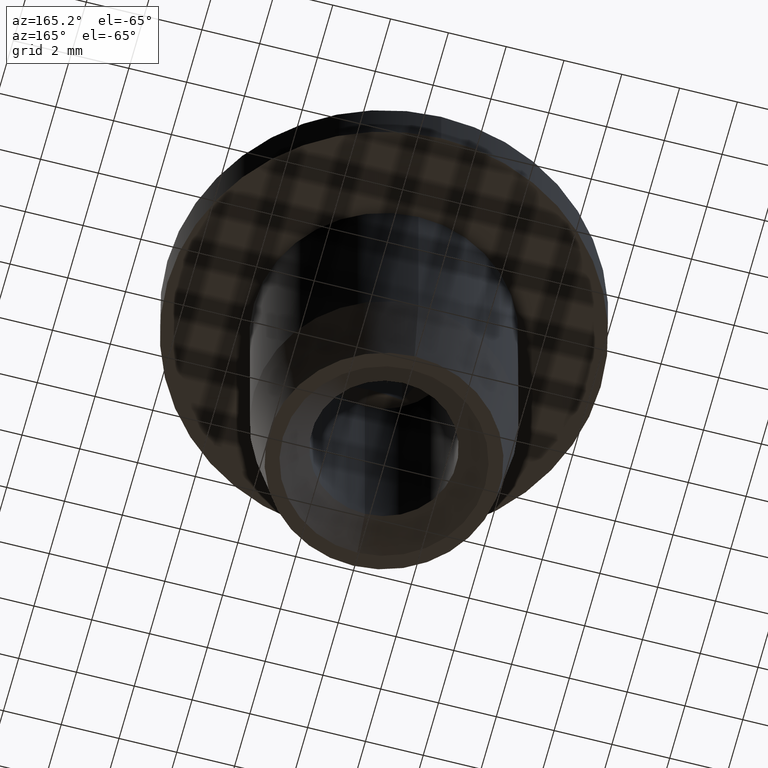
[diagram: clean part render]
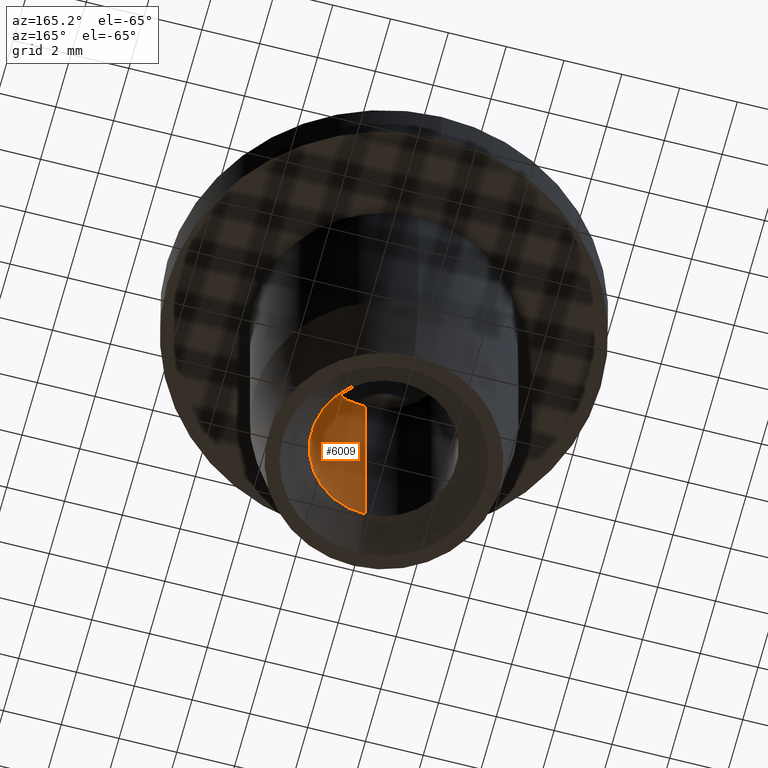
[diagram: same view with one face highlighted and labeled with its STEP entity id]
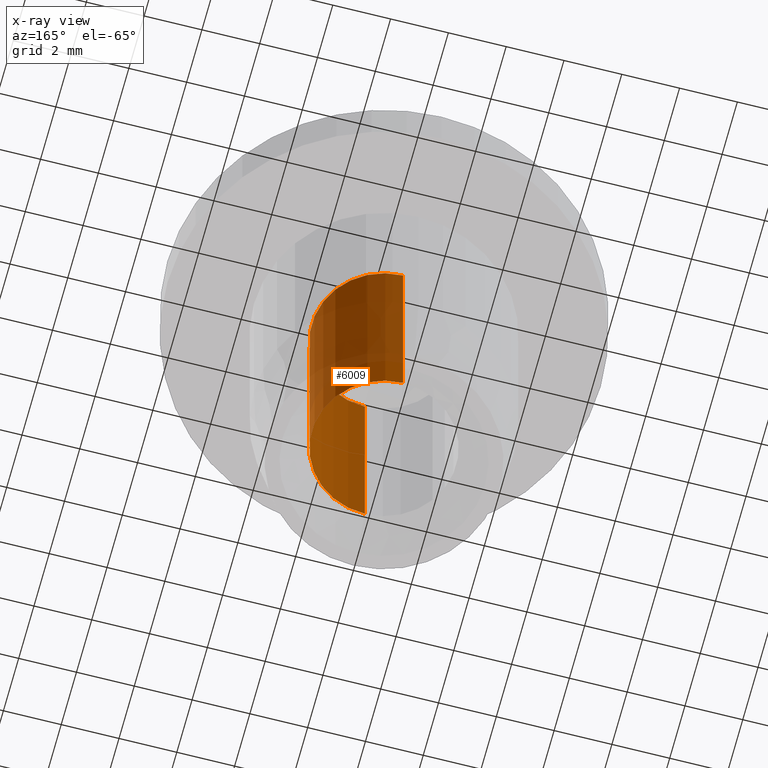
[diagram: x-ray of the same camera — body ghosted, the highlighted face saturated]
A machine part, auxiliary view. The second image highlights one B-rep face of the part: STEP entity #6009.
The next image is the same camera in x-ray: the body ghosted, the highlighted face saturated — about 54% of this face is hidden behind the body in this view.
In plain terms, the highlighted cylindrical surface (partial cylindrical patch) has radius 2.5 mm, axis along (-0, 0, -1).
Its self-contained STEP definition (entity closure, byte-faithful):
#134 = CIRCLE ( 'NONE', #6902, 2.499999999999996900 ) ;
#645 = ORIENTED_EDGE ( 'NONE', *, *, #4473, .F. ) ;
#765 = ORIENTED_EDGE ( 'NONE', *, *, #14594, .T. ) ;
#1061 = VECTOR ( 'NONE', #6477, 1000.000000000000000 ) ;
#1097 = CARTESIAN_POINT ( 'NONE',  ( 0.0000000000000000000, -1.743142758279826900E-015, 3.399999999999998600 ) ) ;
#2327 = FACE_OUTER_BOUND ( 'NONE', #15485, .T. ) ;
#3829 = AXIS2_PLACEMENT_3D ( 'NONE', #13000, #11780, #4199 ) ;
#3976 = CARTESIAN_POINT ( 'NONE',  ( 3.061616997868380700E-016, -2.499999999999995600, -6.100000000000002300 ) ) ;
#4199 = DIRECTION ( 'NONE',  ( 0.0000000000000000000, 1.000000000000000000, 3.469446951953617100E-016 ) ) ;
#4337 = ORIENTED_EDGE ( 'NONE', *, *, #5660, .F. ) ;
#4473 = EDGE_CURVE ( 'NONE', #14602, #5605, #5213, .T. ) ;
#5038 = VERTEX_POINT ( 'NONE', #14343 ) ;
#5078 = CARTESIAN_POINT ( 'NONE',  ( 0.0000000000000000000, 2.499999999999999600, -5.099999999999998800 ) ) ;
#5206 = EDGE_CURVE ( 'NONE', #12272, #5605, #11975, .T. ) ;
#5213 = LINE ( 'NONE', #3976, #1061 ) ;
#5408 = LINE ( 'NONE', #14915, #9757 ) ;
#5605 = VERTEX_POINT ( 'NONE', #7211 ) ;
#5660 = EDGE_CURVE ( 'NONE', #5038, #14602, #134, .T. ) ;
#6009 = ADVANCED_FACE ( 'NONE', ( #2327 ), #14815, .F. ) ;
#6085 = DIRECTION ( 'NONE',  ( 0.0000000000000000000, 4.060685641161864900E-016, -1.000000000000000000 ) ) ;
#6477 = DIRECTION ( 'NONE',  ( -0.0000000000000000000, 4.060685641161864400E-016, -1.000000000000000000 ) ) ;
#6902 = AXIS2_PLACEMENT_3D ( 'NONE', #1097, #16224, #8600 ) ;
#6993 = AXIS2_PLACEMENT_3D ( 'NONE', #12162, #6085, #9630 ) ;
#7211 = CARTESIAN_POINT ( 'NONE',  ( 3.061616997868380700E-016, -2.499999999999996000, -5.100000000000000500 ) ) ;
#8600 = DIRECTION ( 'NONE',  ( 0.0000000000000000000, 1.000000000000000000, 3.469446951953618600E-016 ) ) ;
#8672 = CARTESIAN_POINT ( 'NONE',  ( 3.061616997868379700E-016, -2.499999999999999100, 3.399999999999997700 ) ) ;
#9630 = DIRECTION ( 'NONE',  ( 0.0000000000000000000, 1.000000000000000000, 3.469446951953617100E-016 ) ) ;
#9757 = VECTOR ( 'NONE', #11103, 1000.000000000000000 ) ;
#10510 = ORIENTED_EDGE ( 'NONE', *, *, #5206, .T. ) ;
#11103 = DIRECTION ( 'NONE',  ( -0.0000000000000000000, 4.060685641161864400E-016, -1.000000000000000000 ) ) ;
#11780 = DIRECTION ( 'NONE',  ( -0.0000000000000000000, 4.060685641161864400E-016, -1.000000000000000000 ) ) ;
#11975 = CIRCLE ( 'NONE', #6993, 2.499999999999997800 ) ;
#12162 = CARTESIAN_POINT ( 'NONE',  ( 0.0000000000000000000, 1.708440036707757300E-015, -5.099999999999999600 ) ) ;
#12272 = VERTEX_POINT ( 'NONE', #5078 ) ;
#13000 = CARTESIAN_POINT ( 'NONE',  ( 0.0000000000000000000, 2.114508600823944300E-015, -6.100000000000001400 ) ) ;
#14343 = CARTESIAN_POINT ( 'NONE',  ( 0.0000000000000000000, 2.499999999999994700, 3.399999999999999500 ) ) ;
#14594 = EDGE_CURVE ( 'NONE', #5038, #12272, #5408, .T. ) ;
#14602 = VERTEX_POINT ( 'NONE', #8672 ) ;
#14815 = CYLINDRICAL_SURFACE ( 'NONE', #3829, 2.499999999999997800 ) ;
#14915 = CARTESIAN_POINT ( 'NONE',  ( 0.0000000000000000000, 2.500000000000000000, -6.100000000000000500 ) ) ;
#15485 = EDGE_LOOP ( 'NONE', ( #645, #4337, #765, #10510 ) ) ;
#16224 = DIRECTION ( 'NONE',  ( -0.0000000000000000000, 4.060685641161864400E-016, -1.000000000000000000 ) ) ;